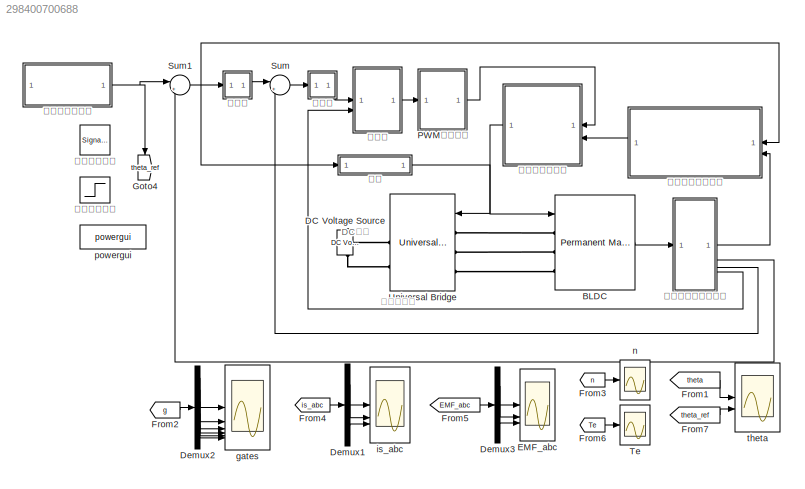
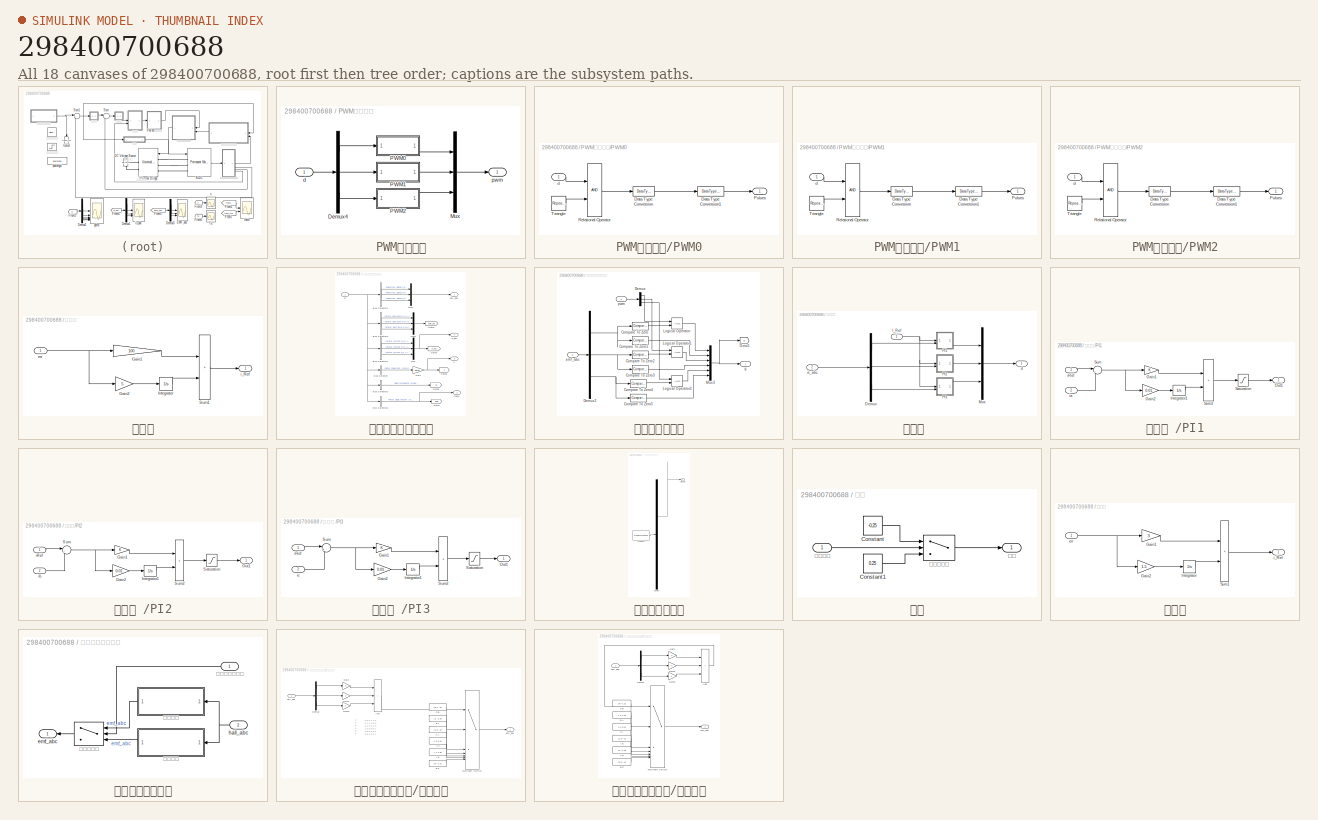
[diagram: thumbnail index - all 18 canvases of the model, root first then tree order]
MODEL mdl_298400700688
KIND model
CONFIG AbsTol = auto
CONFIG EnableMultiTasking = on
CONFIG FixedStep = auto
CONFIG MaxStep = auto
CONFIG MinStep = auto
CONFIG RelTol = 1e-3
CONFIG SampleTimeConstraint = Unconstrained
CONFIG SolverName = ode45
CONFIG StartTime = 0.0
CONFIG StopTime = 0.2
BLOCK [Reference] BLDC  REF=spsPermanentMagnetSynchronousMachineLib/Permanent Magnet
Synchronous Machine
  SourceBlock = spsPermanentMagnetSynchronousMachineLib/Permanent Magnet\nSynchronous Machine
  SourceType = Permanent Magnet Synchronous Machine
BLOCK [Reference] DC Voltage Source  REF=spsDCVoltageSourceLib/DC Voltage Source
  NameLocation = right
  SourceBlock = spsDCVoltageSourceLib/DC Voltage Source
  SourceType = DC Voltage Source
BLOCK [Demux] Demux1
  Outputs = 3
BLOCK [Demux] Demux2
  Outputs = 6
BLOCK [Demux] Demux3
  Outputs = 3
BLOCK [Scope] EMF_abc
  Floating = off
  NumInputPorts = 3
  ScopeSpecificationString = Simulink.scopes.TimeScopeBlockCfg('CurrentConfiguration', extmgr.ConfigurationSet(extmgr.Configuration('Core','General UI',true),extmgr.Configuration('Core','Source UI',true),extmgr.Configuration('Sources','WiredSimulink',true,'DataLogging',true,'DataLoggingSaveFormat','StructureWithTime','DataLoggingDecimation','25','DataLoggingDecimateData',true,'SampleTime','1e-5','DataLoggingVariableName','Sco...<+3106ch>
BLOCK [From] From1
  CloseFcn = tagdialog Close
  GotoTag = theta
  TagVisibility = global
BLOCK [From] From2
  CloseFcn = tagdialog Close
  GotoTag = g
  TagVisibility = global
BLOCK [From] From3
  CloseFcn = tagdialog Close
  GotoTag = n
  TagVisibility = global
BLOCK [From] From4
  CloseFcn = tagdialog Close
  GotoTag = is_abc
  TagVisibility = global
BLOCK [From] From5
  CloseFcn = tagdialog Close
  GotoTag = EMF_abc
  TagVisibility = global
BLOCK [From] From6
  CloseFcn = tagdialog Close
  GotoTag = Te
  TagVisibility = global
BLOCK [From] From7
  CloseFcn = tagdialog Close
  GotoTag = theta_ref
  TagVisibility = global
BLOCK [Goto] Goto4
  GotoTag = theta_ref
  NameLocation = right
  TagVisibility = global
BLOCK [SubSystem] PWM生成模块
BLOCK [Demux] PWM生成模块/Demux4
  Outputs = 3
BLOCK [Mux] PWM生成模块/Mux
  DisplayOption = bar
  Inputs = 3
BLOCK [SubSystem] PWM生成模块/PWM0
BLOCK [DataTypeConversion] PWM生成模块/PWM0/Data Type Conversion
  RndMeth = Floor
  SaturateOnIntegerOverflow = off
BLOCK [DataTypeConversion] PWM生成模块/PWM0/Data Type Conversion1
  OutDataTypeStr = boolean
BLOCK [Outport] PWM生成模块/PWM0/Pulses
  VectorParamsAs1DForOutWhenUnconnected = off
BLOCK [RelationalOperator] PWM生成模块/PWM0/Relational Operator
  ZeroCross = off
BLOCK [Reference] PWM生成模块/PWM0/Triangle  REF=simulink/Sources/Repeating
Sequence
  SourceBlock = simulink/Sources/Repeating\nSequence
  SourceType = Repeating table
BLOCK [Inport] PWM生成模块/PWM0/d 
BLOCK [SubSystem] PWM生成模块/PWM1
BLOCK [DataTypeConversion] PWM生成模块/PWM1/Data Type Conversion
  RndMeth = Floor
  SaturateOnIntegerOverflow = off
BLOCK [DataTypeConversion] PWM生成模块/PWM1/Data Type Conversion1
  OutDataTypeStr = boolean
BLOCK [Outport] PWM生成模块/PWM1/Pulses
  VectorParamsAs1DForOutWhenUnconnected = off
BLOCK [RelationalOperator] PWM生成模块/PWM1/Relational Operator
  ZeroCross = off
BLOCK [Reference] PWM生成模块/PWM1/Triangle  REF=simulink/Sources/Repeating
Sequence
  SourceBlock = simulink/Sources/Repeating\nSequence
  SourceType = Repeating table
BLOCK [Inport] PWM生成模块/PWM1/d 
BLOCK [SubSystem] PWM生成模块/PWM2
BLOCK [DataTypeConversion] PWM生成模块/PWM2/Data Type Conversion
  RndMeth = Floor
  SaturateOnIntegerOverflow = off
BLOCK [DataTypeConversion] PWM生成模块/PWM2/Data Type Conversion1
  OutDataTypeStr = boolean
BLOCK [Outport] PWM生成模块/PWM2/Pulses
  VectorParamsAs1DForOutWhenUnconnected = off
BLOCK [RelationalOperator] PWM生成模块/PWM2/Relational Operator
  ZeroCross = off
BLOCK [Reference] PWM生成模块/PWM2/Triangle  REF=simulink/Sources/Repeating
Sequence
  SourceBlock = simulink/Sources/Repeating\nSequence
  SourceType = Repeating table
BLOCK [Inport] PWM生成模块/PWM2/d 
BLOCK [Inport] PWM生成模块/d
BLOCK [Outport] PWM生成模块/pwm
  VectorParamsAs1DForOutWhenUnconnected = off
BLOCK [Sum] Sum
  Inputs = |+-
BLOCK [Sum] Sum1
  Inputs = |+-
BLOCK [Scope] Te
  Floating = off
  NumInputPorts = 1
  ScopeSpecificationString = Simulink.scopes.TimeScopeBlockCfg('CurrentConfiguration', extmgr.ConfigurationSet(extmgr.Configuration('Core','General UI',true,'FigureColor',[1 1 1]),extmgr.Configuration('Core','Source UI',true),extmgr.Configuration('Sources','WiredSimulink',true,'DataLogging',true,'DataLoggingVariableName','ScopeData2','DataLoggingSaveFormat','StructureWithTime','SampleTime','1e-4','DataLoggingDecimation','1','...<+1914ch>
BLOCK [Reference] Universal Bridge  REF=spsUniversalBridgeLib/Universal Bridge
  NameLocation = top
  SourceBlock = spsUniversalBridgeLib/Universal Bridge
  SourceType = Universal Bridge
BLOCK [Scope] gates
  Floating = off
  NumInputPorts = 6
  ScopeSpecificationString = Simulink.scopes.TimeScopeBlockCfg('CurrentConfiguration', extmgr.ConfigurationSet(extmgr.Configuration('Core','General UI',true),extmgr.Configuration('Core','Source UI',true),extmgr.Configuration('Sources','WiredSimulink',true,'DataLogging',true,'DataLoggingVariableName','ScopeData1','DataLoggingSaveFormat','StructureWithTime','DataLoggingDecimation','1','DataLoggingDecimateData',true),extmgr.Conf...<+5158ch>
BLOCK [Scope] is_abc
  Floating = off
  NumInputPorts = 3
  ScopeSpecificationString = Simulink.scopes.TimeScopeBlockCfg('CurrentConfiguration', extmgr.ConfigurationSet(extmgr.Configuration('Core','General UI',true),extmgr.Configuration('Core','Source UI',true),extmgr.Configuration('Sources','WiredSimulink',true,'DataLogging',true,'DataLoggingSaveFormat','StructureWithTime','DataLoggingDecimation','25','DataLoggingDecimateData',true,'SampleTime','1e-5','DataLoggingVariableName','Sco...<+3054ch>
BLOCK [Scope] n
  Floating = off
  NameLocation = top
  NumInputPorts = 1
  ScopeSpecificationString = Simulink.scopes.TimeScopeBlockCfg('CurrentConfiguration', extmgr.ConfigurationSet(extmgr.Configuration('Core','General UI',true,'FigureColor',[1 1 1]),extmgr.Configuration('Core','Source UI',true),extmgr.Configuration('Sources','WiredSimulink',true,'DataLogging',true,'DataLoggingSaveFormat','StructureWithTime','DataLoggingDecimation','25','DataLoggingDecimateData',true,'SampleTime','1e-5'),extmgr....<+1937ch>
BLOCK [Reference] powergui  REF=spspowerguiLib/powergui
  Priority = 1
  SourceBlock = spspowerguiLib/powergui
  SourceType = PSB option menu block
BLOCK [Scope] theta
  Floating = off
  NumInputPorts = 2
  ScopeSpecificationString = Simulink.scopes.TimeScopeBlockCfg('CurrentConfiguration', extmgr.ConfigurationSet(extmgr.Configuration('Core','General UI',true,'FigureColor',[1 1 1]),extmgr.Configuration('Core','Source UI',true),extmgr.Configuration('Sources','WiredSimulink',true,'DataLogging',true,'DataLoggingSaveFormat','StructureWithTime','DataLoggingDecimation','25','DataLoggingDecimateData',true,'SampleTime','1e-5','DataLog...<+2060ch>
BLOCK [SubSystem] 位置环
BLOCK [Gain] 位置环/Gain1
  Gain = 100
BLOCK [Gain] 位置环/Gain2
  Gain = 5
BLOCK [Integrator] 位置环/Integrator
BLOCK [Sum] 位置环/Sum1
  IconShape = rectangular
BLOCK [Inport] 位置环/err
BLOCK [Outport] 位置环/i_Ref
  VectorParamsAs1DForOutWhenUnconnected = off
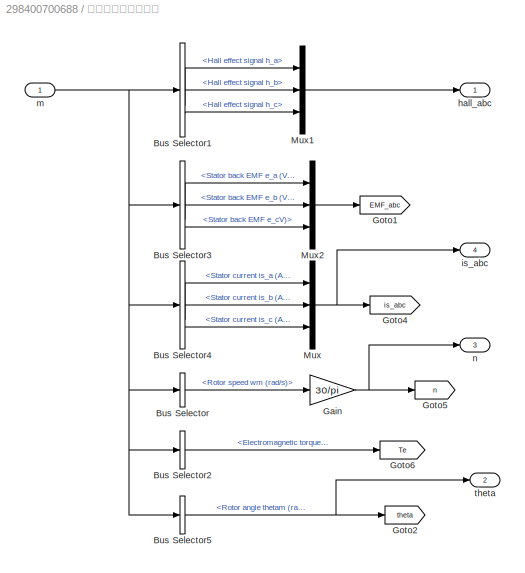
BLOCK [SubSystem] 信号输出与采集模块
BLOCK [BusSelector] 信号输出与采集模块/Bus Selector
  OutputSignals = Rotor speed wm (rad/s)
BLOCK [BusSelector] 信号输出与采集模块/Bus Selector1
  OutputSignals = Hall effect signal h_a,Hall effect signal h_b,Hall effect signal h_c
BLOCK [BusSelector] 信号输出与采集模块/Bus Selector2
  OutputSignals = Electromagnetic torque Te (N*m)
BLOCK [BusSelector] 信号输出与采集模块/Bus Selector3
  OutputSignals = Stator back EMF e_a (V),Stator back EMF e_b (V),Stator back EMF e_cV)
BLOCK [BusSelector] 信号输出与采集模块/Bus Selector4
  OutputSignals = Stator current is_a (A),Stator current is_b (A),Stator current is_c (A)
BLOCK [BusSelector] 信号输出与采集模块/Bus Selector5
  OutputSignals = Rotor angle thetam (rad)
BLOCK [Gain] 信号输出与采集模块/Gain
  Gain = 30/pi
  NameLocation = top
BLOCK [Goto] 信号输出与采集模块/Goto1
  GotoTag = EMF_abc
  NameLocation = top
  TagVisibility = global
BLOCK [Goto] 信号输出与采集模块/Goto2
  GotoTag = theta
  NameLocation = top
  TagVisibility = global
BLOCK [Goto] 信号输出与采集模块/Goto4
  GotoTag = is_abc
  NameLocation = top
  TagVisibility = global
BLOCK [Goto] 信号输出与采集模块/Goto5
  GotoTag = n
  NameLocation = top
  TagVisibility = global
BLOCK [Goto] 信号输出与采集模块/Goto6
  GotoTag = Te
  NameLocation = top
  TagVisibility = global
BLOCK [Mux] 信号输出与采集模块/Mux
  DisplayOption = bar
  Inputs = 3
BLOCK [Mux] 信号输出与采集模块/Mux1
  DisplayOption = bar
  Inputs = 3
BLOCK [Mux] 信号输出与采集模块/Mux2
  DisplayOption = bar
  Inputs = 3
BLOCK [Outport] 信号输出与采集模块/hall_abc
  VectorParamsAs1DForOutWhenUnconnected = off
BLOCK [Outport] 信号输出与采集模块/is_abc
  Port = 4
  VectorParamsAs1DForOutWhenUnconnected = off
BLOCK [Inport] 信号输出与采集模块/m
BLOCK [Outport] 信号输出与采集模块/n
  Port = 3
  VectorParamsAs1DForOutWhenUnconnected = off
BLOCK [Outport] 信号输出与采集模块/theta
  Port = 2
  VectorParamsAs1DForOutWhenUnconnected = off
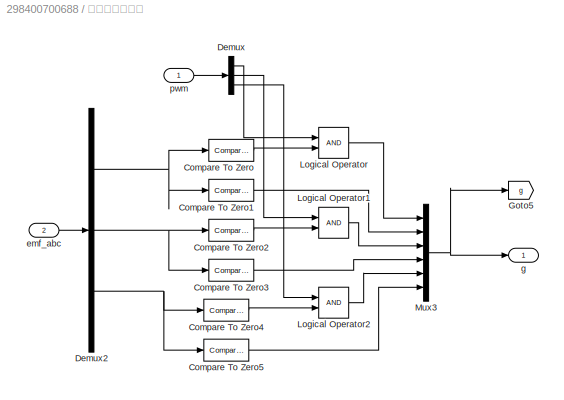
BLOCK [SubSystem] 半斩波控制模块
BLOCK [Reference] 半斩波控制模块/Compare To Zero  REF=simulink/Logic and Bit
Operations/Compare
To Zero
  SourceBlock = simulink/Logic and Bit\nOperations/Compare\nTo Zero
  SourceType = Compare To Zero
BLOCK [Reference] 半斩波控制模块/Compare To Zero1  REF=simulink/Logic and Bit
Operations/Compare
To Zero
  SourceBlock = simulink/Logic and Bit\nOperations/Compare\nTo Zero
  SourceType = Compare To Zero
BLOCK [Reference] 半斩波控制模块/Compare To Zero2  REF=simulink/Logic and Bit
Operations/Compare
To Zero
  SourceBlock = simulink/Logic and Bit\nOperations/Compare\nTo Zero
  SourceType = Compare To Zero
BLOCK [Reference] 半斩波控制模块/Compare To Zero3  REF=simulink/Logic and Bit
Operations/Compare
To Zero
  SourceBlock = simulink/Logic and Bit\nOperations/Compare\nTo Zero
  SourceType = Compare To Zero
BLOCK [Reference] 半斩波控制模块/Compare To Zero4  REF=simulink/Logic and Bit
Operations/Compare
To Zero
  SourceBlock = simulink/Logic and Bit\nOperations/Compare\nTo Zero
  SourceType = Compare To Zero
BLOCK [Reference] 半斩波控制模块/Compare To Zero5  REF=simulink/Logic and Bit
Operations/Compare
To Zero
  SourceBlock = simulink/Logic and Bit\nOperations/Compare\nTo Zero
  SourceType = Compare To Zero
BLOCK [Demux] 半斩波控制模块/Demux
  Outputs = 3
BLOCK [Demux] 半斩波控制模块/Demux2
  Outputs = 3
BLOCK [Goto] 半斩波控制模块/Goto5
  GotoTag = g
  NameLocation = top
  TagVisibility = global
BLOCK [Logic] 半斩波控制模块/Logical Operator
  AllPortsSameDT = off
  OutDataTypeStr = boolean
BLOCK [Logic] 半斩波控制模块/Logical Operator1
  AllPortsSameDT = off
  OutDataTypeStr = boolean
BLOCK [Logic] 半斩波控制模块/Logical Operator2
  AllPortsSameDT = off
  OutDataTypeStr = boolean
BLOCK [Mux] 半斩波控制模块/Mux3
  DisplayOption = bar
  Inputs = 6
BLOCK [Inport] 半斩波控制模块/emf_abc 
  Port = 2
BLOCK [Outport] 半斩波控制模块/g
  VectorParamsAs1DForOutWhenUnconnected = off
BLOCK [Inport] 半斩波控制模块/pwm
BLOCK [SignalGenerator] 正弦参考位置
  Amplitude = 30
  Frequency = 0.2
BLOCK [SubSystem] 电流环 
BLOCK [Demux] 电流环 /Demux
  Outputs = 3
BLOCK [Inport] 电流环 /I_Ref
  NameLocation = top
BLOCK [Mux] 电流环 /Mux
  DisplayOption = bar
  Inputs = 3
BLOCK [SubSystem] 电流环 /PI1
  NameLocation = top
BLOCK [Gain] 电流环 /PI1/Gain1
BLOCK [Gain] 电流环 /PI1/Gain2
  Gain = 0.01
BLOCK [Integrator] 电流环 /PI1/Integrator1
BLOCK [Outport] 电流环 /PI1/Out1
  VectorParamsAs1DForOutWhenUnconnected = off
BLOCK [Saturate] 电流环 /PI1/Saturation
  LowerLimit = -1
  UpperLimit = 1
  ZeroCross = off
BLOCK [Sum] 电流环 /PI1/Sum
  Inputs = |+-
BLOCK [Sum] 电流环 /PI1/Sum2
  IconShape = rectangular
BLOCK [Inport] 电流环 /PI1/iRef
BLOCK [Inport] 电流环 /PI1/ia
  Port = 2
BLOCK [SubSystem] 电流环 /PI2
BLOCK [Gain] 电流环 /PI2/Gain1
BLOCK [Gain] 电流环 /PI2/Gain2
  Gain = 0.01
BLOCK [Integrator] 电流环 /PI2/Integrator1
BLOCK [Outport] 电流环 /PI2/Out1
  VectorParamsAs1DForOutWhenUnconnected = off
BLOCK [Saturate] 电流环 /PI2/Saturation
  LowerLimit = -1
  UpperLimit = 1
  ZeroCross = off
BLOCK [Sum] 电流环 /PI2/Sum
  Inputs = |+-
BLOCK [Sum] 电流环 /PI2/Sum2
  IconShape = rectangular
BLOCK [Inport] 电流环 /PI2/iRef
BLOCK [Inport] 电流环 /PI2/ib
  Port = 2
BLOCK [SubSystem] 电流环 /PI3
BLOCK [Gain] 电流环 /PI3/Gain1
BLOCK [Gain] 电流环 /PI3/Gain2
  Gain = 0.01
BLOCK [Integrator] 电流环 /PI3/Integrator1
BLOCK [Outport] 电流环 /PI3/Out1
  VectorParamsAs1DForOutWhenUnconnected = off
BLOCK [Saturate] 电流环 /PI3/Saturation
  LowerLimit = -1
  UpperLimit = 1
  ZeroCross = off
BLOCK [Sum] 电流环 /PI3/Sum
  Inputs = |+-
BLOCK [Sum] 电流环 /PI3/Sum2
  IconShape = rectangular
BLOCK [Inport] 电流环 /PI3/iRef
BLOCK [Inport] 电流环 /PI3/ic
  Port = 2
BLOCK [Outport] 电流环 /d
  VectorParamsAs1DForOutWhenUnconnected = off
BLOCK [Inport] 电流环 /is_abc
  Port = 2
BLOCK [SubSystem] 类方波参考位置
  ClipboardFcn = sigbuilder_block('clipboard');
  CloseFcn = sigbuilder_block('close');
  ContinueFcn = sigbuilder_block('continue');
  CopyFcn = sigbuilder_block('copy');
  DeleteFcn = sigbuilder_block('delete');
  LoadFcn = sigbuilder_block('load');
  MaskHideContents = on
  ModelCloseFcn = sigbuilder_block('modelClose');
  NameChangeFcn = sigbuilder_block('namechange');
  OpenFcn = sigbuilder_block('open',[426 176 550.5 326 ]);
  PauseFcn = sigbuilder_block('pause');
  PreSaveFcn = sigbuilder_block('preSave');
  StartFcn = sigbuilder_block('start');
  StopFcn = sigbuilder_block('stop');
  Tag = STV Subsys
BLOCK [Demux] 类方波参考位置/Demux
  DisplayOption = none
  Outputs = 1
  Tag = STV Demux
BLOCK [FromWorkspace] 类方波参考位置/FromWs
  Tag = STV FromWs
  VariableName = tuvar
BLOCK [Outport] 类方波参考位置/Signal 1
  Tag = STV Outport
BLOCK [SubSystem] 负载
BLOCK [Constant] 负载/Constant
  Value = -0.25
BLOCK [Constant] 负载/Constant1
  Value = 0.25
BLOCK [Inport] 负载/旋转方向
BLOCK [Switch] 负载/正反转切换
  Criteria = u2 > Threshold
  InputSameDT = off
  SaturateOnIntegerOverflow = off
BLOCK [Outport] 负载/负载
BLOCK [SubSystem] 转速环
BLOCK [Gain] 转速环/Gain1
  Gain = 3
BLOCK [Gain] 转速环/Gain2
  Gain = 1.5
BLOCK [Integrator] 转速环/Integrator
BLOCK [Sum] 转速环/Sum1
  IconShape = rectangular
BLOCK [Inport] 转速环/err
BLOCK [Outport] 转速环/i_Ref
  VectorParamsAs1DForOutWhenUnconnected = off
BLOCK [Step] 阶跃参考位置
  After = -30
  SampleTime = 0
  Time = 0.3
BLOCK [SubSystem] 霍尔位置解码模块
  NameLocation = top
BLOCK [Outport] 霍尔位置解码模块/emf_abc
BLOCK [Inport] 霍尔位置解码模块/hall_abc
  NameLocation = top
  Port = 2
BLOCK [Inport] 霍尔位置解码模块/位置差正负判定
  NameLocation = top
BLOCK [SubSystem] 霍尔位置解码模块/反转逻辑
  NameLocation = top
BLOCK [Constant] 霍尔位置解码模块/反转逻辑/AB
  Value = [-1 1 0]
BLOCK [Constant] 霍尔位置解码模块/反转逻辑/AC
  Value = [-1 0 1]
BLOCK [Sum] 霍尔位置解码模块/反转逻辑/Add
  IconShape = rectangular
  Inputs = +++
BLOCK [Constant] 霍尔位置解码模块/反转逻辑/BA
  Value = [1 -1 0]
BLOCK [Constant] 霍尔位置解码模块/反转逻辑/BC
  Value = [0 -1 1]
BLOCK [Constant] 霍尔位置解码模块/反转逻辑/CA
  Value = [1 0 -1]
BLOCK [Constant] 霍尔位置解码模块/反转逻辑/CB
  Value = [0 1 -1]
BLOCK [Demux] 霍尔位置解码模块/反转逻辑/Demux
  Outputs = 3
BLOCK [Gain] 霍尔位置解码模块/反转逻辑/Gain
  Gain = 4
BLOCK [Gain] 霍尔位置解码模块/反转逻辑/Gain1
  Gain = 2
BLOCK [Gain] 霍尔位置解码模块/反转逻辑/Gain2
BLOCK [MultiPortSwitch] 霍尔位置解码模块/反转逻辑/Multiport Switch
  InputSameDT = off
  Inputs = 6
  SaturateOnIntegerOverflow = off
BLOCK [Outport] 霍尔位置解码模块/反转逻辑/emf_abc
BLOCK [Inport] 霍尔位置解码模块/反转逻辑/hall_abc
BLOCK [Switch] 霍尔位置解码模块/正反转切换
  Criteria = u2 > Threshold
  InputSameDT = off
  NameLocation = top
  SaturateOnIntegerOverflow = off
BLOCK [SubSystem] 霍尔位置解码模块/正转逻辑
  NameLocation = top
BLOCK [Constant] 霍尔位置解码模块/正转逻辑/AB
  Value = [1 -1 0]
BLOCK [Constant] 霍尔位置解码模块/正转逻辑/AC
  Value = [1 0 -1]
BLOCK [Sum] 霍尔位置解码模块/正转逻辑/Add
  IconShape = rectangular
  Inputs = +++
BLOCK [Constant] 霍尔位置解码模块/正转逻辑/BA
  Value = [-1 1 0]
BLOCK [Constant] 霍尔位置解码模块/正转逻辑/BC
  Value = [0 1 -1]
BLOCK [Constant] 霍尔位置解码模块/正转逻辑/CA
  Value = [-1 0 1]
BLOCK [Constant] 霍尔位置解码模块/正转逻辑/CB
  Value = [0 -1 1]
BLOCK [Demux] 霍尔位置解码模块/正转逻辑/Demux
  Outputs = 3
BLOCK [Gain] 霍尔位置解码模块/正转逻辑/Gain
  Gain = 4
BLOCK [Gain] 霍尔位置解码模块/正转逻辑/Gain1
  Gain = 2
BLOCK [Gain] 霍尔位置解码模块/正转逻辑/Gain2
BLOCK [MultiPortSwitch] 霍尔位置解码模块/正转逻辑/Multiport Switch
  InputSameDT = off
  Inputs = 6
  SaturateOnIntegerOverflow = off
BLOCK [Outport] 霍尔位置解码模块/正转逻辑/emf_abc
BLOCK [Inport] 霍尔位置解码模块/正转逻辑/hall_abc
ANNOTATION (root): DC电源
ANNOTATION (root): 三相逆变器
ANNOTATION 霍尔位置解码模块/反转逻辑: 0 0 0 1 1 0 0 1 1 0 0 0 0 1 0 0 1 0 1 0 0 0 0 1 1 0 0 1 0 0 0 0 1 0 0 1
ANNOTATION 霍尔位置解码模块/反转逻辑: 1 2 3 4 5 6
LINE BLDC:1 -> 信号输出与采集模块:1
LINE Demux1:1 -> is_abc:1
LINE Demux1:2 -> is_abc:2
LINE Demux1:3 -> is_abc:3
LINE Demux2:1 -> gates:1
LINE Demux2:2 -> gates:2
LINE Demux2:3 -> gates:3
LINE Demux2:4 -> gates:4
LINE Demux2:5 -> gates:5
LINE Demux2:6 -> gates:6
LINE Demux3:1 -> EMF_abc:1
LINE Demux3:2 -> EMF_abc:2
LINE Demux3:3 -> EMF_abc:3
LINE From1:1 -> theta:1
LINE From2:1 -> Demux2:1
LINE From3:1 -> n:1
LINE From4:1 -> Demux1:1
LINE From5:1 -> Demux3:1
LINE From6:1 -> Te:1
LINE From7:1 -> theta:2
LINE PWM生成模块/Demux4:1 -> PWM生成模块/PWM0:1
LINE PWM生成模块/Demux4:2 -> PWM生成模块/PWM1:1
LINE PWM生成模块/Demux4:3 -> PWM生成模块/PWM2:1
LINE PWM生成模块/Mux:1 -> PWM生成模块/pwm:1
LINE PWM生成模块/PWM0/Data Type Conversion1:1 -> PWM生成模块/PWM0/Pulses:1
LINE PWM生成模块/PWM0/Data Type Conversion:1 -> PWM生成模块/PWM0/Data Type Conversion1:1
LINE PWM生成模块/PWM0/Relational Operator:1 -> PWM生成模块/PWM0/Data Type Conversion:1
LINE PWM生成模块/PWM0/Triangle:1 -> PWM生成模块/PWM0/Relational Operator:2
LINE PWM生成模块/PWM0/d :1 -> PWM生成模块/PWM0/Relational Operator:1
LINE PWM生成模块/PWM0:1 -> PWM生成模块/Mux:1
LINE PWM生成模块/PWM1/Data Type Conversion1:1 -> PWM生成模块/PWM1/Pulses:1
LINE PWM生成模块/PWM1/Data Type Conversion:1 -> PWM生成模块/PWM1/Data Type Conversion1:1
LINE PWM生成模块/PWM1/Relational Operator:1 -> PWM生成模块/PWM1/Data Type Conversion:1
LINE PWM生成模块/PWM1/Triangle:1 -> PWM生成模块/PWM1/Relational Operator:2
LINE PWM生成模块/PWM1/d :1 -> PWM生成模块/PWM1/Relational Operator:1
LINE PWM生成模块/PWM1:1 -> PWM生成模块/Mux:2
LINE PWM生成模块/PWM2/Data Type Conversion1:1 -> PWM生成模块/PWM2/Pulses:1
LINE PWM生成模块/PWM2/Data Type Conversion:1 -> PWM生成模块/PWM2/Data Type Conversion1:1
LINE PWM生成模块/PWM2/Relational Operator:1 -> PWM生成模块/PWM2/Data Type Conversion:1
LINE PWM生成模块/PWM2/Triangle:1 -> PWM生成模块/PWM2/Relational Operator:2
LINE PWM生成模块/PWM2/d :1 -> PWM生成模块/PWM2/Relational Operator:1
LINE PWM生成模块/PWM2:1 -> PWM生成模块/Mux:3
LINE PWM生成模块/d:1 -> PWM生成模块/Demux4:1
LINE PWM生成模块:1 -> 半斩波控制模块:1
NET Sum1:1 -> 位置环:1, 负载:1, 霍尔位置解码模块:1
LINE Sum:1 -> 转速环:1
LINE 位置环/Gain1:1 -> 位置环/Sum1:1
LINE 位置环/Gain2:1 -> 位置环/Integrator:1
LINE 位置环/Integrator:1 -> 位置环/Sum1:2
LINE 位置环/Sum1:1 -> 位置环/i_Ref:1
NET 位置环/err:1 -> 位置环/Gain1:1, 位置环/Gain2:1
LINE 位置环:1 -> Sum:1
LINE 信号输出与采集模块/Bus Selector1:1 -> 信号输出与采集模块/Mux1:1
LINE 信号输出与采集模块/Bus Selector1:2 -> 信号输出与采集模块/Mux1:2
LINE 信号输出与采集模块/Bus Selector1:3 -> 信号输出与采集模块/Mux1:3
LINE 信号输出与采集模块/Bus Selector2:1 -> 信号输出与采集模块/Goto6:1
LINE 信号输出与采集模块/Bus Selector3:1 -> 信号输出与采集模块/Mux2:1
LINE 信号输出与采集模块/Bus Selector3:2 -> 信号输出与采集模块/Mux2:2
LINE 信号输出与采集模块/Bus Selector3:3 -> 信号输出与采集模块/Mux2:3
LINE 信号输出与采集模块/Bus Selector4:1 -> 信号输出与采集模块/Mux:1
LINE 信号输出与采集模块/Bus Selector4:2 -> 信号输出与采集模块/Mux:2
LINE 信号输出与采集模块/Bus Selector4:3 -> 信号输出与采集模块/Mux:3
NET 信号输出与采集模块/Bus Selector5:1 -> 信号输出与采集模块/Goto2:1, 信号输出与采集模块/theta:1
LINE 信号输出与采集模块/Bus Selector:1 -> 信号输出与采集模块/Gain:1
NET 信号输出与采集模块/Gain:1 -> 信号输出与采集模块/Goto5:1, 信号输出与采集模块/n:1
LINE 信号输出与采集模块/Mux1:1 -> 信号输出与采集模块/hall_abc:1
LINE 信号输出与采集模块/Mux2:1 -> 信号输出与采集模块/Goto1:1
NET 信号输出与采集模块/Mux:1 -> 信号输出与采集模块/Goto4:1, 信号输出与采集模块/is_abc:1
NET 信号输出与采集模块/m:1 -> 信号输出与采集模块/Bus Selector1:1, 信号输出与采集模块/Bus Selector2:1, 信号输出与采集模块/Bus Selector3:1, 信号输出与采集模块/Bus Selector4:1, 信号输出与采集模块/Bus Selector5:1, 信号输出与采集模块/Bus Selector:1
LINE 信号输出与采集模块:1 -> 霍尔位置解码模块:2
LINE 信号输出与采集模块:2 -> Sum1:2
LINE 信号输出与采集模块:3 -> Sum:2
LINE 信号输出与采集模块:4 -> 电流环 :2
LINE 半斩波控制模块/Compare To Zero1:1 -> 半斩波控制模块/Mux3:2
LINE 半斩波控制模块/Compare To Zero2:1 -> 半斩波控制模块/Logical Operator1:2
LINE 半斩波控制模块/Compare To Zero3:1 -> 半斩波控制模块/Mux3:4
LINE 半斩波控制模块/Compare To Zero4:1 -> 半斩波控制模块/Logical Operator2:2
LINE 半斩波控制模块/Compare To Zero5:1 -> 半斩波控制模块/Mux3:6
LINE 半斩波控制模块/Compare To Zero:1 -> 半斩波控制模块/Logical Operator:2
NET 半斩波控制模块/Demux2:1 -> 半斩波控制模块/Compare To Zero1:1, 半斩波控制模块/Compare To Zero:1
NET 半斩波控制模块/Demux2:2 -> 半斩波控制模块/Compare To Zero2:1, 半斩波控制模块/Compare To Zero3:1
NET 半斩波控制模块/Demux2:3 -> 半斩波控制模块/Compare To Zero4:1, 半斩波控制模块/Compare To Zero5:1
LINE 半斩波控制模块/Demux:1 -> 半斩波控制模块/Logical Operator:1
LINE 半斩波控制模块/Demux:2 -> 半斩波控制模块/Logical Operator1:1
LINE 半斩波控制模块/Demux:3 -> 半斩波控制模块/Logical Operator2:1
LINE 半斩波控制模块/Logical Operator1:1 -> 半斩波控制模块/Mux3:3
LINE 半斩波控制模块/Logical Operator2:1 -> 半斩波控制模块/Mux3:5
LINE 半斩波控制模块/Logical Operator:1 -> 半斩波控制模块/Mux3:1
NET 半斩波控制模块/Mux3:1 -> 半斩波控制模块/Goto5:1, 半斩波控制模块/g:1
LINE 半斩波控制模块/emf_abc :1 -> 半斩波控制模块/Demux2:1
LINE 半斩波控制模块/pwm:1 -> 半斩波控制模块/Demux:1
LINE 半斩波控制模块:1 -> Universal Bridge:1
LINE 电流环 /Demux:1 -> 电流环 /PI1:2
LINE 电流环 /Demux:2 -> 电流环 /PI2:2
LINE 电流环 /Demux:3 -> 电流环 /PI3:2
NET 电流环 /I_Ref:1 -> 电流环 /PI1:1, 电流环 /PI2:1, 电流环 /PI3:1
LINE 电流环 /Mux:1 -> 电流环 /d:1
LINE 电流环 /PI1/Gain1:1 -> 电流环 /PI1/Sum2:1
LINE 电流环 /PI1/Gain2:1 -> 电流环 /PI1/Integrator1:1
LINE 电流环 /PI1/Integrator1:1 -> 电流环 /PI1/Sum2:2
LINE 电流环 /PI1/Saturation:1 -> 电流环 /PI1/Out1:1
LINE 电流环 /PI1/Sum2:1 -> 电流环 /PI1/Saturation:1
NET 电流环 /PI1/Sum:1 -> 电流环 /PI1/Gain1:1, 电流环 /PI1/Gain2:1
LINE 电流环 /PI1/iRef:1 -> 电流环 /PI1/Sum:1
LINE 电流环 /PI1/ia:1 -> 电流环 /PI1/Sum:2
LINE 电流环 /PI1:1 -> 电流环 /Mux:1
LINE 电流环 /PI2/Gain1:1 -> 电流环 /PI2/Sum2:1
LINE 电流环 /PI2/Gain2:1 -> 电流环 /PI2/Integrator1:1
LINE 电流环 /PI2/Integrator1:1 -> 电流环 /PI2/Sum2:2
LINE 电流环 /PI2/Saturation:1 -> 电流环 /PI2/Out1:1
LINE 电流环 /PI2/Sum2:1 -> 电流环 /PI2/Saturation:1
NET 电流环 /PI2/Sum:1 -> 电流环 /PI2/Gain1:1, 电流环 /PI2/Gain2:1
LINE 电流环 /PI2/iRef:1 -> 电流环 /PI2/Sum:1
LINE 电流环 /PI2/ib:1 -> 电流环 /PI2/Sum:2
LINE 电流环 /PI2:1 -> 电流环 /Mux:2
LINE 电流环 /PI3/Gain1:1 -> 电流环 /PI3/Sum2:1
LINE 电流环 /PI3/Gain2:1 -> 电流环 /PI3/Integrator1:1
LINE 电流环 /PI3/Integrator1:1 -> 电流环 /PI3/Sum2:2
LINE 电流环 /PI3/Saturation:1 -> 电流环 /PI3/Out1:1
LINE 电流环 /PI3/Sum2:1 -> 电流环 /PI3/Saturation:1
NET 电流环 /PI3/Sum:1 -> 电流环 /PI3/Gain1:1, 电流环 /PI3/Gain2:1
LINE 电流环 /PI3/iRef:1 -> 电流环 /PI3/Sum:1
LINE 电流环 /PI3/ic:1 -> 电流环 /PI3/Sum:2
LINE 电流环 /PI3:1 -> 电流环 /Mux:3
LINE 电流环 /is_abc:1 -> 电流环 /Demux:1
LINE 电流环 :1 -> PWM生成模块:1
NET 类方波参考位置:1 -> Goto4:1, Sum1:1
LINE 负载/Constant1:1 -> 负载/正反转切换:3
LINE 负载/Constant:1 -> 负载/正反转切换:1
LINE 负载/旋转方向:1 -> 负载/正反转切换:2
LINE 负载/正反转切换:1 -> 负载/负载:1
LINE 负载:1 -> BLDC:1
LINE 转速环/Gain1:1 -> 转速环/Sum1:1
LINE 转速环/Gain2:1 -> 转速环/Integrator:1
LINE 转速环/Integrator:1 -> 转速环/Sum1:2
LINE 转速环/Sum1:1 -> 转速环/i_Ref:1
NET 转速环/err:1 -> 转速环/Gain1:1, 转速环/Gain2:1
LINE 转速环:1 -> 电流环 :1
NET 霍尔位置解码模块/hall_abc:1 -> 霍尔位置解码模块/反转逻辑:1, 霍尔位置解码模块/正转逻辑:1
LINE 霍尔位置解码模块/位置差正负判定:1 -> 霍尔位置解码模块/正反转切换:2
LINE 霍尔位置解码模块/反转逻辑/AB:1 -> 霍尔位置解码模块/反转逻辑/Multiport Switch:6
LINE 霍尔位置解码模块/反转逻辑/AC:1 -> 霍尔位置解码模块/反转逻辑/Multiport Switch:5
LINE 霍尔位置解码模块/反转逻辑/Add:1 -> 霍尔位置解码模块/反转逻辑/Multiport Switch:1
LINE 霍尔位置解码模块/反转逻辑/BA:1 -> 霍尔位置解码模块/反转逻辑/Multiport Switch:3
LINE 霍尔位置解码模块/反转逻辑/BC:1 -> 霍尔位置解码模块/反转逻辑/Multiport Switch:7
LINE 霍尔位置解码模块/反转逻辑/CA:1 -> 霍尔位置解码模块/反转逻辑/Multiport Switch:4
LINE 霍尔位置解码模块/反转逻辑/CB:1 -> 霍尔位置解码模块/反转逻辑/Multiport Switch:2
LINE 霍尔位置解码模块/反转逻辑/Demux:1 -> 霍尔位置解码模块/反转逻辑/Gain:1
LINE 霍尔位置解码模块/反转逻辑/Demux:2 -> 霍尔位置解码模块/反转逻辑/Gain1:1
LINE 霍尔位置解码模块/反转逻辑/Demux:3 -> 霍尔位置解码模块/反转逻辑/Gain2:1
LINE 霍尔位置解码模块/反转逻辑/Gain1:1 -> 霍尔位置解码模块/反转逻辑/Add:2
LINE 霍尔位置解码模块/反转逻辑/Gain2:1 -> 霍尔位置解码模块/反转逻辑/Add:3
LINE 霍尔位置解码模块/反转逻辑/Gain:1 -> 霍尔位置解码模块/反转逻辑/Add:1
LINE 霍尔位置解码模块/反转逻辑/Multiport Switch:1 -> 霍尔位置解码模块/反转逻辑/emf_abc:1
LINE 霍尔位置解码模块/反转逻辑/hall_abc:1 -> 霍尔位置解码模块/反转逻辑/Demux:1
LINE 霍尔位置解码模块/反转逻辑:1 -> 霍尔位置解码模块/正反转切换:3
LINE 霍尔位置解码模块/正反转切换:1 -> 霍尔位置解码模块/emf_abc:1
LINE 霍尔位置解码模块/正转逻辑/AB:1 -> 霍尔位置解码模块/正转逻辑/Multiport Switch:6
LINE 霍尔位置解码模块/正转逻辑/AC:1 -> 霍尔位置解码模块/正转逻辑/Multiport Switch:5
LINE 霍尔位置解码模块/正转逻辑/Add:1 -> 霍尔位置解码模块/正转逻辑/Multiport Switch:1
LINE 霍尔位置解码模块/正转逻辑/BA:1 -> 霍尔位置解码模块/正转逻辑/Multiport Switch:3
LINE 霍尔位置解码模块/正转逻辑/BC:1 -> 霍尔位置解码模块/正转逻辑/Multiport Switch:7
LINE 霍尔位置解码模块/正转逻辑/CA:1 -> 霍尔位置解码模块/正转逻辑/Multiport Switch:4
LINE 霍尔位置解码模块/正转逻辑/CB:1 -> 霍尔位置解码模块/正转逻辑/Multiport Switch:2
LINE 霍尔位置解码模块/正转逻辑/Demux:1 -> 霍尔位置解码模块/正转逻辑/Gain:1
LINE 霍尔位置解码模块/正转逻辑/Demux:2 -> 霍尔位置解码模块/正转逻辑/Gain1:1
LINE 霍尔位置解码模块/正转逻辑/Demux:3 -> 霍尔位置解码模块/正转逻辑/Gain2:1
LINE 霍尔位置解码模块/正转逻辑/Gain1:1 -> 霍尔位置解码模块/正转逻辑/Add:2
LINE 霍尔位置解码模块/正转逻辑/Gain2:1 -> 霍尔位置解码模块/正转逻辑/Add:3
LINE 霍尔位置解码模块/正转逻辑/Gain:1 -> 霍尔位置解码模块/正转逻辑/Add:1
LINE 霍尔位置解码模块/正转逻辑/Multiport Switch:1 -> 霍尔位置解码模块/正转逻辑/emf_abc:1
LINE 霍尔位置解码模块/正转逻辑/hall_abc:1 -> 霍尔位置解码模块/正转逻辑/Demux:1
LINE 霍尔位置解码模块/正转逻辑:1 -> 霍尔位置解码模块/正反转切换:1
LINE 霍尔位置解码模块:1 -> 半斩波控制模块:2
PLINE BLDC:LConn1 -- Universal Bridge:LConn1
PLINE BLDC:LConn2 -- Universal Bridge:LConn2
PLINE BLDC:LConn3 -- Universal Bridge:LConn3
PLINE DC Voltage Source:LConn1 -- Universal Bridge:RConn2
PLINE DC Voltage Source:RConn1 -- Universal Bridge:RConn1
note: NET lines group one-source signal fan-out (src -> all destinations, sorted); 1:1 wires keep LINE
